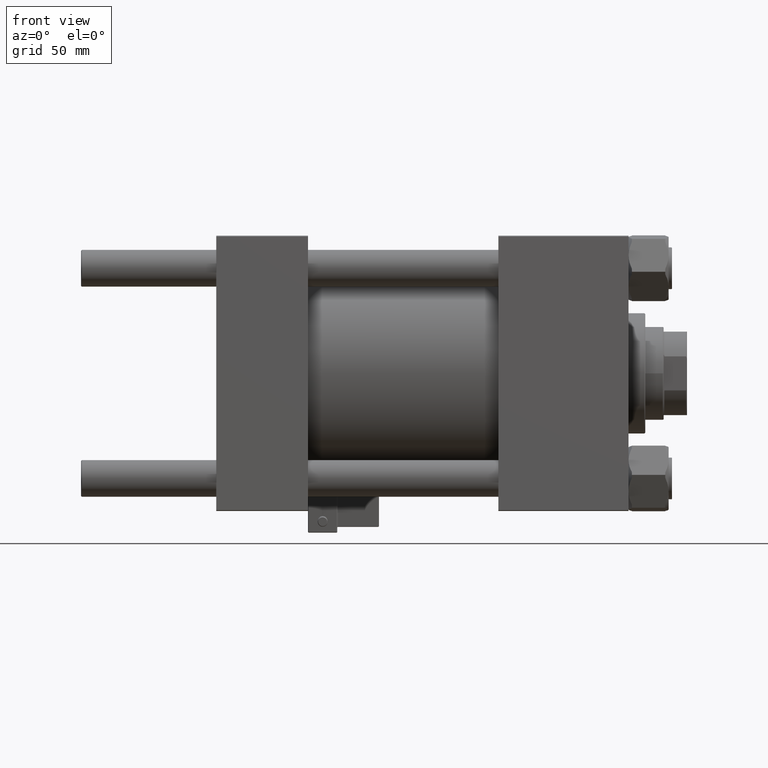
[diagram: clean part render]
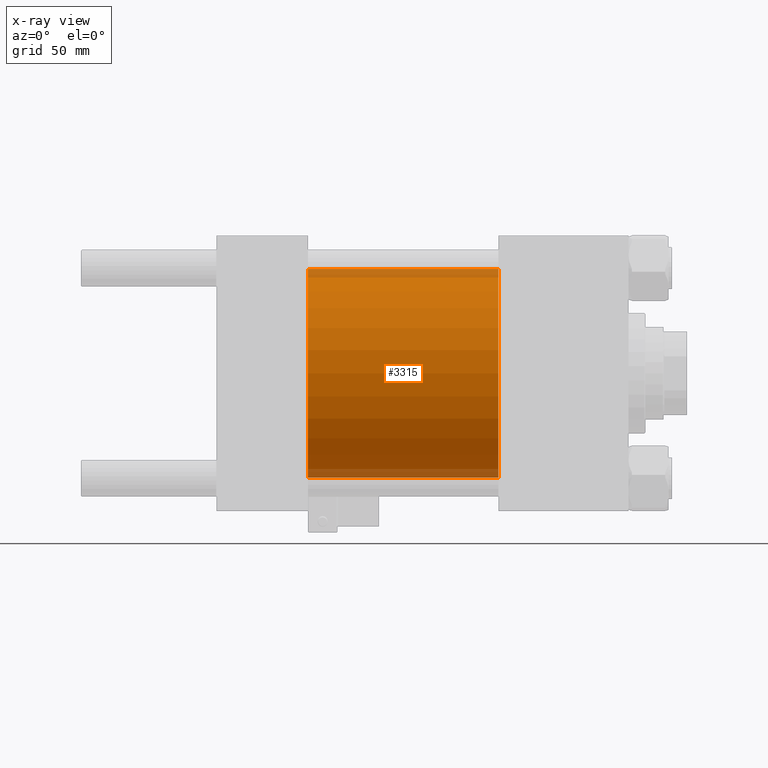
[diagram: x-ray — body ghosted, one internal face saturated and labeled with its STEP entity id]
A machine part, front view, then the same camera in x-ray: the body is ghosted and one INTERNAL B-rep face — a face not visible from any outside direction — is saturated and labeled: STEP entity #3315.
In plain terms, the highlighted cylindrical surface (partial cylindrical patch) has radius 62.5 mm, axis along (-1, -0, -0).
Its self-contained STEP definition (entity closure, byte-faithful):
#1144 = CARTESIAN_POINT ( 'NONE',  ( 55.00000000000000000, 7.654042494670956226E-15, -62.50000000000000000 ) ) ;
#1219 = DIRECTION ( 'NONE',  ( 1.000000000000000000, 0.000000000000000000, 0.000000000000000000 ) ) ;
#2550 = CARTESIAN_POINT ( 'NONE',  ( 169.0000000000000000, 0.000000000000000000, 62.50000000000000000 ) ) ;
#2734 = ORIENTED_EDGE ( 'NONE', *, *, #4627, .T. ) ;
#2831 = VERTEX_POINT ( 'NONE', #44375 ) ;
#2959 = EDGE_LOOP ( 'NONE', ( #2734, #40250, #28292, #16107 ) ) ;
#3315 = ADVANCED_FACE ( 'NONE', ( #22447 ), #26447, .F. ) ;
#3973 = AXIS2_PLACEMENT_3D ( 'NONE', #16865, #20329, #32314 ) ;
#4627 = EDGE_CURVE ( 'NONE', #42281, #7431, #9810, .T. ) ;
#5983 = DIRECTION ( 'NONE',  ( 0.000000000000000000, 0.000000000000000000, -1.000000000000000000 ) ) ;
#6195 = DIRECTION ( 'NONE',  ( -1.000000000000000000, -0.000000000000000000, -0.000000000000000000 ) ) ;
#6983 = CARTESIAN_POINT ( 'NONE',  ( 169.0000000000000000, 0.000000000000000000, 0.000000000000000000 ) ) ;
#7345 = VECTOR ( 'NONE', #35307, 1000.000000000000000 ) ;
#7431 = VERTEX_POINT ( 'NONE', #52653 ) ;
#9810 = CIRCLE ( 'NONE', #3973, 62.50000000000000000 ) ;
#13176 = DIRECTION ( 'NONE',  ( -1.000000000000000000, -0.000000000000000000, -0.000000000000000000 ) ) ;
#16107 = ORIENTED_EDGE ( 'NONE', *, *, #29604, .F. ) ;
#16865 = CARTESIAN_POINT ( 'NONE',  ( 169.0000000000000000, 0.000000000000000000, 0.000000000000000000 ) ) ;
#18460 = EDGE_CURVE ( 'NONE', #2831, #25378, #28943, .T. ) ;
#19395 = CARTESIAN_POINT ( 'NONE',  ( 169.0000000000000000, 0.000000000000000000, 62.50000000000000000 ) ) ;
#20329 = DIRECTION ( 'NONE',  ( 1.000000000000000000, 0.000000000000000000, 0.000000000000000000 ) ) ;
#22447 = FACE_OUTER_BOUND ( 'NONE', #2959, .T. ) ;
#25169 = LINE ( 'NONE', #41385, #26743 ) ;
#25378 = VERTEX_POINT ( 'NONE', #1144 ) ;
#26447 = CYLINDRICAL_SURFACE ( 'NONE', #32230, 62.50000000000000000 ) ;
#26483 = CARTESIAN_POINT ( 'NONE',  ( 55.00000000000000000, 0.000000000000000000, 0.000000000000000000 ) ) ;
#26743 = VECTOR ( 'NONE', #13176, 1000.000000000000000 ) ;
#26789 = LINE ( 'NONE', #2550, #7345 ) ;
#28292 = ORIENTED_EDGE ( 'NONE', *, *, #18460, .F. ) ;
#28886 = EDGE_CURVE ( 'NONE', #7431, #25378, #25169, .T. ) ;
#28943 = CIRCLE ( 'NONE', #46753, 62.50000000000000000 ) ;
#29604 = EDGE_CURVE ( 'NONE', #42281, #2831, #26789, .T. ) ;
#32230 = AXIS2_PLACEMENT_3D ( 'NONE', #6983, #6195, #42655 ) ;
#32314 = DIRECTION ( 'NONE',  ( 0.000000000000000000, 0.000000000000000000, -1.000000000000000000 ) ) ;
#35307 = DIRECTION ( 'NONE',  ( -1.000000000000000000, -0.000000000000000000, -0.000000000000000000 ) ) ;
#40250 = ORIENTED_EDGE ( 'NONE', *, *, #28886, .T. ) ;
#41385 = CARTESIAN_POINT ( 'NONE',  ( 169.0000000000000000, 7.654042494670956226E-15, -62.50000000000000000 ) ) ;
#42281 = VERTEX_POINT ( 'NONE', #19395 ) ;
#42655 = DIRECTION ( 'NONE',  ( 0.000000000000000000, 0.000000000000000000, 1.000000000000000000 ) ) ;
#44375 = CARTESIAN_POINT ( 'NONE',  ( 55.00000000000000000, 0.000000000000000000, 62.50000000000000000 ) ) ;
#46753 = AXIS2_PLACEMENT_3D ( 'NONE', #26483, #1219, #5983 ) ;
#52653 = CARTESIAN_POINT ( 'NONE',  ( 169.0000000000000000, 7.654042494670956226E-15, -62.50000000000000000 ) ) ;